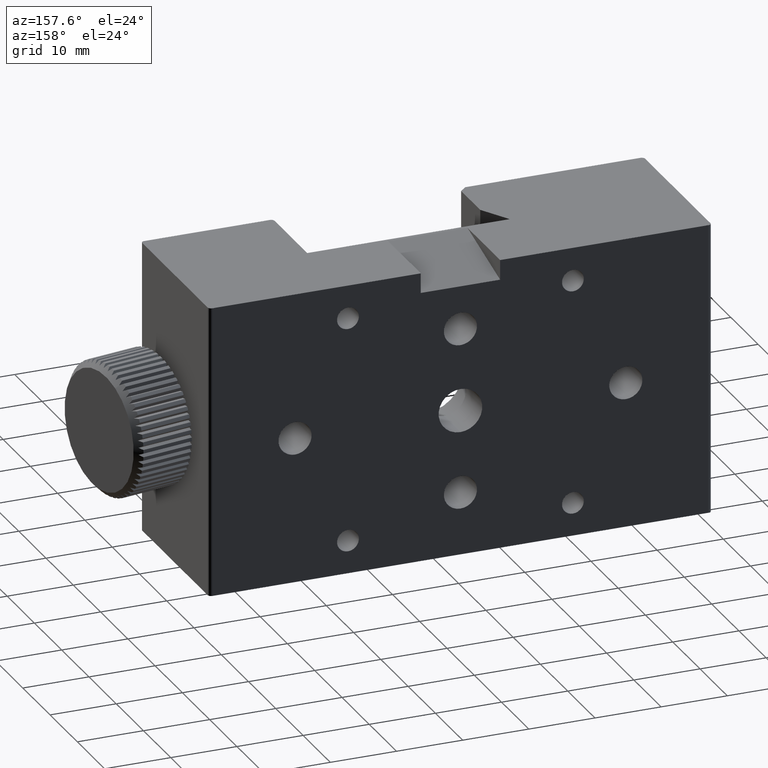
[diagram: clean part render]
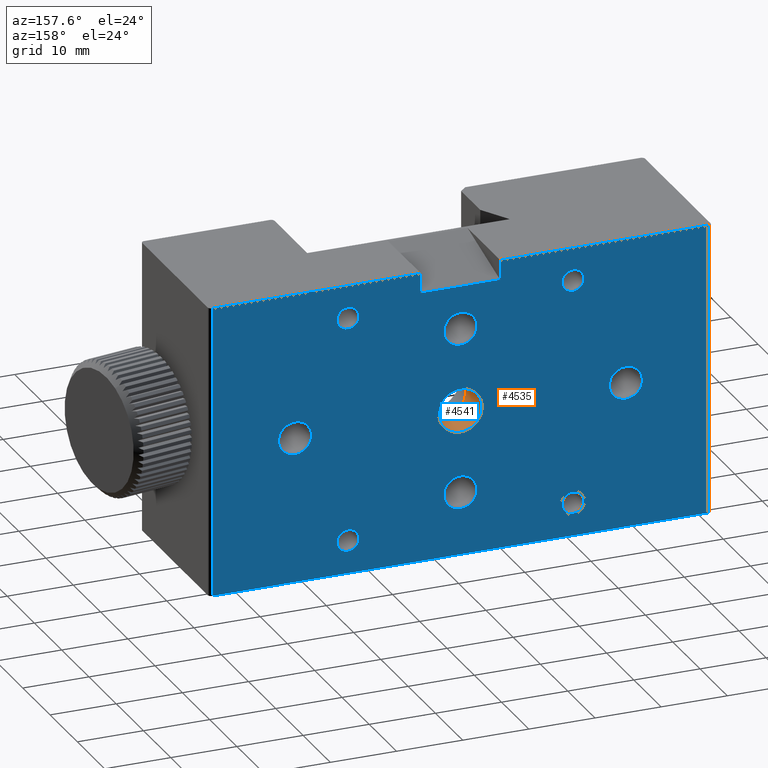
[diagram: same view with the hole feature highlighted: cylindrical wall and planar end face, labeled with their STEP entity ids]
A machine part, auxiliary view. The highlighted faces form one hole feature of diameter 6.6 mm: the cylindrical wall (entity #4535, orange) and its adjacent planar end face (entity #4541, blue) — they share a circular edge in the B-rep.
Wall:
#87 = FACE_OUTER_BOUND ( 'NONE', #577, .T. ) ;
#90 = FACE_OUTER_BOUND ( 'NONE', #548, .T. ) ;
#92 = CYLINDRICAL_SURFACE ( 'NONE', #7127, 3.300000000000004700 ) ;
#481 = CARTESIAN_POINT ( 'NONE',  ( -22.72326483554944300, 14.05794959574837000, 0.0000000000000000000 ) ) ;
#482 = DIRECTION ( 'NONE',  ( -0.0000000000000000000, -1.000000000000000000, -0.0000000000000000000 ) ) ;
#483 = DIRECTION ( 'NONE',  ( 0.0000000000000000000, 0.0000000000000000000, -1.000000000000000000 ) ) ;
#484 = CARTESIAN_POINT ( 'NONE',  ( -22.72326483554944300, 8.057949595748372200, 0.0000000000000000000 ) ) ;
#485 = DIRECTION ( 'NONE',  ( -0.0000000000000000000, -1.000000000000000000, -0.0000000000000000000 ) ) ;
#486 = DIRECTION ( 'NONE',  ( 0.0000000000000000000, 0.0000000000000000000, -1.000000000000000000 ) ) ;
#548 = EDGE_LOOP ( 'NONE', ( #1062 ) ) ;
#577 = EDGE_LOOP ( 'NONE', ( #1061 ) ) ;
#1061 = ORIENTED_EDGE ( 'NONE', *, *, #1379, .F. ) ;
#1062 = ORIENTED_EDGE ( 'NONE', *, *, #1380, .T. ) ;
#1379 = EDGE_CURVE ( 'NONE', #4290, #4290, #2554, .T. ) ;
#1380 = EDGE_CURVE ( 'NONE', #4291, #4291, #2557, .T. ) ;
#2554 = CIRCLE ( 'NONE', #3349, 3.299999999999996700 ) ;
#2557 = CIRCLE ( 'NONE', #3350, 3.300000000000013100 ) ;
#2606 = DIRECTION ( 'NONE',  ( -0.0000000000000000000, -1.000000000000000000, -0.0000000000000000000 ) ) ;
#2607 = DIRECTION ( 'NONE',  ( 0.0000000000000000000, 0.0000000000000000000, -1.000000000000000000 ) ) ;
#2610 = CARTESIAN_POINT ( 'NONE',  ( -22.72326483554944300, 1.557949595748372000, 0.0000000000000000000 ) ) ;
#3349 = AXIS2_PLACEMENT_3D ( 'NONE', #481, #482, #483 ) ;
#3350 = AXIS2_PLACEMENT_3D ( 'NONE', #484, #485, #486 ) ;
#4290 = VERTEX_POINT ( 'NONE', #5331 ) ;
#4291 = VERTEX_POINT ( 'NONE', #5337 ) ;
#4535 = ADVANCED_FACE ( 'NONE', ( #87, #90 ), #92, .F. ) ;
#5331 = CARTESIAN_POINT ( 'NONE',  ( -22.72326483554944300, 14.05794959574837000, -3.299999999999996700 ) ) ;
#5337 = CARTESIAN_POINT ( 'NONE',  ( -22.72326483554944300, 8.057949595748372200, -3.300000000000013100 ) ) ;
#7127 = AXIS2_PLACEMENT_3D ( 'NONE', #2610, #2606, #2607 ) ;
End face:
#102 = FACE_BOUND ( 'NONE', #6610, .T. ) ;
#103 = FACE_BOUND ( 'NONE', #6636, .T. ) ;
#104 = FACE_BOUND ( 'NONE', #6633, .T. ) ;
#106 = FACE_BOUND ( 'NONE', #6634, .T. ) ;
#108 = FACE_BOUND ( 'NONE', #6689, .T. ) ;
#109 = FACE_BOUND ( 'NONE', #6631, .T. ) ;
#110 = FACE_BOUND ( 'NONE', #6635, .T. ) ;
#111 = FACE_BOUND ( 'NONE', #6632, .T. ) ;
#112 = FACE_BOUND ( 'NONE', #6664, .T. ) ;
#113 = FACE_OUTER_BOUND ( 'NONE', #6662, .T. ) ;
#481 = CARTESIAN_POINT ( 'NONE',  ( -22.72326483554944300, 14.05794959574837000, 0.0000000000000000000 ) ) ;
#482 = DIRECTION ( 'NONE',  ( -0.0000000000000000000, -1.000000000000000000, -0.0000000000000000000 ) ) ;
#483 = DIRECTION ( 'NONE',  ( 0.0000000000000000000, 0.0000000000000000000, -1.000000000000000000 ) ) ;
#561 = CARTESIAN_POINT ( 'NONE',  ( -5.723264835549433500, 14.05794959574837000, -17.00000000000000700 ) ) ;
#562 = DIRECTION ( 'NONE',  ( -0.0000000000000000000, 1.000000000000000000, -0.0000000000000000000 ) ) ;
#563 = DIRECTION ( 'NONE',  ( 0.0000000000000000000, 0.0000000000000000000, 1.000000000000000000 ) ) ;
#1083 = ORIENTED_EDGE ( 'NONE', *, *, #1388, .F. ) ;
#1084 = ORIENTED_EDGE ( 'NONE', *, *, #1466, .F. ) ;
#1085 = ORIENTED_EDGE ( 'NONE', *, *, #6248, .F. ) ;
#1086 = ORIENTED_EDGE ( 'NONE', *, *, #1474, .F. ) ;
#1087 = ORIENTED_EDGE ( 'NONE', *, *, #6235, .F. ) ;
#1088 = ORIENTED_EDGE ( 'NONE', *, *, #1469, .F. ) ;
#1089 = ORIENTED_EDGE ( 'NONE', *, *, #1389, .F. ) ;
#1090 = ORIENTED_EDGE ( 'NONE', *, *, #1383, .F. ) ;
#1091 = ORIENTED_EDGE ( 'NONE', *, *, #1379, .T. ) ;
#1092 = ORIENTED_EDGE ( 'NONE', *, *, #3619, .F. ) ;
#1093 = ORIENTED_EDGE ( 'NONE', *, *, #3629, .T. ) ;
#1094 = ORIENTED_EDGE ( 'NONE', *, *, #1437, .F. ) ;
#1095 = ORIENTED_EDGE ( 'NONE', *, *, #1443, .F. ) ;
#1096 = ORIENTED_EDGE ( 'NONE', *, *, #3627, .T. ) ;
#1097 = ORIENTED_EDGE ( 'NONE', *, *, #3625, .T. ) ;
#1098 = ORIENTED_EDGE ( 'NONE', *, *, #1436, .F. ) ;
#1099 = ORIENTED_EDGE ( 'NONE', *, *, #3620, .F. ) ;
#1379 = EDGE_CURVE ( 'NONE', #4290, #4290, #2554, .T. ) ;
#1383 = EDGE_CURVE ( 'NONE', #4294, #4294, #2560, .T. ) ;
#1388 = EDGE_CURVE ( 'NONE', #4297, #4297, #1883, .T. ) ;
#1389 = EDGE_CURVE ( 'NONE', #4298, #4298, #1885, .T. ) ;
#1436 = EDGE_CURVE ( 'NONE', #5120, #5056, #1944, .T. ) ;
#1437 = EDGE_CURVE ( 'NONE', #5051, #5042, #1943, .T. ) ;
#1443 = EDGE_CURVE ( 'NONE', #5053, #5051, #1958, .T. ) ;
#1466 = EDGE_CURVE ( 'NONE', #4310, #4310, #1994, .T. ) ;
#1469 = EDGE_CURVE ( 'NONE', #4312, #4312, #1998, .T. ) ;
#1474 = EDGE_CURVE ( 'NONE', #4313, #4313, #2001, .T. ) ;
#1568 = CARTESIAN_POINT ( 'NONE',  ( 14.77673516445055700, 14.05794959574837000, 22.00000000000000000 ) ) ;
#1576 = CARTESIAN_POINT ( 'NONE',  ( 14.77673516445055700, 14.05794959574837000, 22.00000000000000000 ) ) ;
#1578 = DIRECTION ( 'NONE',  ( -1.000000000000000000, 0.0000000000000000000, 0.0000000000000000000 ) ) ;
#1579 = DIRECTION ( 'NONE',  ( -1.000000000000000000, 0.0000000000000000000, 0.0000000000000000000 ) ) ;
#1588 = CARTESIAN_POINT ( 'NONE',  ( 14.77673516445055700, 14.05794959574837000, -22.00000000000000000 ) ) ;
#1590 = DIRECTION ( 'NONE',  ( 0.0000000000000000000, 0.0000000000000000000, 1.000000000000000000 ) ) ;
#1883 = CIRCLE ( 'NONE', #3358, 1.649999999999988400 ) ;
#1885 = CIRCLE ( 'NONE', #3359, 2.499999999999990200 ) ;
#1943 = LINE ( 'NONE', #1568, #1949 ) ;
#1944 = LINE ( 'NONE', #1576, #1947 ) ;
#1947 = VECTOR ( 'NONE', #1578, 1000.000000000000000 ) ;
#1949 = VECTOR ( 'NONE', #1579, 1000.000000000000000 ) ;
#1958 = LINE ( 'NONE', #1588, #1960 ) ;
#1960 = VECTOR ( 'NONE', #1590, 1000.000000000000000 ) ;
#1994 = CIRCLE ( 'NONE', #3383, 1.649999999999988400 ) ;
#1998 = CIRCLE ( 'NONE', #3385, 2.499999999999988500 ) ;
#2001 = CIRCLE ( 'NONE', #3388, 1.649999999999991700 ) ;
#2134 = LINE ( 'NONE', #2855, #2141 ) ;
#2137 = LINE ( 'NONE', #2851, #2139 ) ;
#2139 = VECTOR ( 'NONE', #2846, 1000.000000000000000 ) ;
#2141 = VECTOR ( 'NONE', #2860, 1000.000000000000000 ) ;
#2148 = LINE ( 'NONE', #2868, #2151 ) ;
#2151 = VECTOR ( 'NONE', #2870, 1000.000000000000000 ) ;
#2152 = LINE ( 'NONE', #2869, #2154 ) ;
#2154 = VECTOR ( 'NONE', #2862, 1000.000000000000000 ) ;
#2155 = LINE ( 'NONE', #2878, #2158 ) ;
#2158 = VECTOR ( 'NONE', #2879, 1000.000000000000000 ) ;
#2554 = CIRCLE ( 'NONE', #3349, 3.299999999999996700 ) ;
#2560 = CIRCLE ( 'NONE', #3353, 2.499999999999990200 ) ;
#2628 = DIRECTION ( 'NONE',  ( 0.0000000000000000000, 1.000000000000000000, -0.0000000000000000000 ) ) ;
#2629 = PLANE ( 'NONE',  #7134 ) ;
#2631 = CARTESIAN_POINT ( 'NONE',  ( 14.77673516445055700, 14.05794959574837000, -22.00000000000000000 ) ) ;
#2633 = DIRECTION ( 'NONE',  ( 0.0000000000000000000, 0.0000000000000000000, 1.000000000000000000 ) ) ;
#2846 = DIRECTION ( 'NONE',  ( -1.000000000000000000, 0.0000000000000000000, 0.0000000000000000000 ) ) ;
#2851 = CARTESIAN_POINT ( 'NONE',  ( -23.89337804309660400, 14.05794959574837000, 19.00000000000000000 ) ) ;
#2855 = CARTESIAN_POINT ( 'NONE',  ( -28.72326483554944000, 14.05794959574837000, 19.00000000000000000 ) ) ;
#2860 = DIRECTION ( 'NONE',  ( -0.0000000000000000000, -0.0000000000000000000, 1.000000000000000000 ) ) ;
#2862 = DIRECTION ( 'NONE',  ( -1.000000000000000000, 0.0000000000000000000, 0.0000000000000000000 ) ) ;
#2868 = CARTESIAN_POINT ( 'NONE',  ( -60.22326483554944300, 14.05794959574837000, -22.00000000000000000 ) ) ;
#2869 = CARTESIAN_POINT ( 'NONE',  ( 14.77673516445055700, 14.05794959574837000, -22.00000000000000000 ) ) ;
#2870 = DIRECTION ( 'NONE',  ( 0.0000000000000000000, 0.0000000000000000000, 1.000000000000000000 ) ) ;
#2878 = CARTESIAN_POINT ( 'NONE',  ( -16.72326483554944300, 14.05794959574837000, 19.00000000000000000 ) ) ;
#2879 = DIRECTION ( 'NONE',  ( -0.0000000000000000000, -0.0000000000000000000, 1.000000000000000000 ) ) ;
#2943 = CARTESIAN_POINT ( 'NONE',  ( -28.72326483554944000, 14.05794959574837000, 19.00000000000000000 ) ) ;
#2946 = CARTESIAN_POINT ( 'NONE',  ( -16.72326483554944300, 14.05794959574837000, 19.00000000000000000 ) ) ;
#2949 = CARTESIAN_POINT ( 'NONE',  ( 14.77673516445055700, 14.05794959574837000, 22.00000000000000000 ) ) ;
#2951 = CARTESIAN_POINT ( 'NONE',  ( 14.77673516445055700, 14.05794959574837000, -22.00000000000000000 ) ) ;
#2953 = CARTESIAN_POINT ( 'NONE',  ( -60.22326483554944300, 14.05794959574837000, -22.00000000000000000 ) ) ;
#2954 = CARTESIAN_POINT ( 'NONE',  ( -60.22326483554944300, 14.05794959574837000, 22.00000000000000000 ) ) ;
#2968 = CARTESIAN_POINT ( 'NONE',  ( -28.72326483554944000, 14.05794959574837000, 22.00000000000000000 ) ) ;
#3349 = AXIS2_PLACEMENT_3D ( 'NONE', #481, #482, #483 ) ;
#3353 = AXIS2_PLACEMENT_3D ( 'NONE', #3793, #3794, #3795 ) ;
#3358 = AXIS2_PLACEMENT_3D ( 'NONE', #3808, #3809, #3810 ) ;
#3359 = AXIS2_PLACEMENT_3D ( 'NONE', #3811, #3812, #3813 ) ;
#3383 = AXIS2_PLACEMENT_3D ( 'NONE', #561, #562, #563 ) ;
#3385 = AXIS2_PLACEMENT_3D ( 'NONE', #4148, #4149, #4150 ) ;
#3388 = AXIS2_PLACEMENT_3D ( 'NONE', #4162, #4163, #4164 ) ;
#3619 = EDGE_CURVE ( 'NONE', #5048, #5045, #2137, .T. ) ;
#3620 = EDGE_CURVE ( 'NONE', #5045, #5120, #2134, .T. ) ;
#3625 = EDGE_CURVE ( 'NONE', #5055, #5056, #2148, .T. ) ;
#3627 = EDGE_CURVE ( 'NONE', #5053, #5055, #2152, .T. ) ;
#3629 = EDGE_CURVE ( 'NONE', #5048, #5042, #2155, .T. ) ;
#3793 = CARTESIAN_POINT ( 'NONE',  ( -22.72326483554944300, 14.05794959574837000, 12.50000000000000400 ) ) ;
#3794 = DIRECTION ( 'NONE',  ( -0.0000000000000000000, 1.000000000000000000, -0.0000000000000000000 ) ) ;
#3795 = DIRECTION ( 'NONE',  ( 0.0000000000000000000, 0.0000000000000000000, 1.000000000000000000 ) ) ;
#3808 = CARTESIAN_POINT ( 'NONE',  ( -5.723264835549433500, 14.05794959574837000, 16.99999999999999300 ) ) ;
#3809 = DIRECTION ( 'NONE',  ( -0.0000000000000000000, 1.000000000000000000, -0.0000000000000000000 ) ) ;
#3810 = DIRECTION ( 'NONE',  ( 0.0000000000000000000, 0.0000000000000000000, 1.000000000000000000 ) ) ;
#3811 = CARTESIAN_POINT ( 'NONE',  ( -22.72326483554944300, 14.05794959574837000, -12.49999999999999600 ) ) ;
#3812 = DIRECTION ( 'NONE',  ( -0.0000000000000000000, 1.000000000000000000, -0.0000000000000000000 ) ) ;
#3813 = DIRECTION ( 'NONE',  ( 0.0000000000000000000, 0.0000000000000000000, 1.000000000000000000 ) ) ;
#4148 = CARTESIAN_POINT ( 'NONE',  ( 2.276735164450559300, 14.05794959574837000, 0.0000000000000000000 ) ) ;
#4149 = DIRECTION ( 'NONE',  ( -0.0000000000000000000, 1.000000000000000000, -0.0000000000000000000 ) ) ;
#4150 = DIRECTION ( 'NONE',  ( 0.0000000000000000000, 0.0000000000000000000, 1.000000000000000000 ) ) ;
#4162 = CARTESIAN_POINT ( 'NONE',  ( -39.72326483554943600, 14.05794959574837000, 16.99999999999999300 ) ) ;
#4163 = DIRECTION ( 'NONE',  ( -0.0000000000000000000, 1.000000000000000000, -0.0000000000000000000 ) ) ;
#4164 = DIRECTION ( 'NONE',  ( 0.0000000000000000000, 0.0000000000000000000, 1.000000000000000000 ) ) ;
#4198 = CIRCLE ( 'NONE', #5149, 2.499999999999988500 ) ;
#4225 = CIRCLE ( 'NONE', #5153, 1.649999999999989900 ) ;
#4290 = VERTEX_POINT ( 'NONE', #5331 ) ;
#4294 = VERTEX_POINT ( 'NONE', #5340 ) ;
#4297 = VERTEX_POINT ( 'NONE', #5343 ) ;
#4298 = VERTEX_POINT ( 'NONE', #5344 ) ;
#4310 = VERTEX_POINT ( 'NONE', #5356 ) ;
#4312 = VERTEX_POINT ( 'NONE', #5358 ) ;
#4313 = VERTEX_POINT ( 'NONE', #5359 ) ;
#4316 = VERTEX_POINT ( 'NONE', #5362 ) ;
#4319 = VERTEX_POINT ( 'NONE', #5365 ) ;
#4541 = ADVANCED_FACE ( 'NONE', ( #103, #108, #102, #104, #106, #109, #110, #111, #112, #113 ), #2629, .T. ) ;
#5042 = VERTEX_POINT ( 'NONE', #6575 ) ;
#5045 = VERTEX_POINT ( 'NONE', #2943 ) ;
#5048 = VERTEX_POINT ( 'NONE', #2946 ) ;
#5051 = VERTEX_POINT ( 'NONE', #2949 ) ;
#5053 = VERTEX_POINT ( 'NONE', #2951 ) ;
#5055 = VERTEX_POINT ( 'NONE', #2953 ) ;
#5056 = VERTEX_POINT ( 'NONE', #2954 ) ;
#5120 = VERTEX_POINT ( 'NONE', #2968 ) ;
#5149 = AXIS2_PLACEMENT_3D ( 'NONE', #5495, #5496, #5497 ) ;
#5153 = AXIS2_PLACEMENT_3D ( 'NONE', #5524, #5525, #5526 ) ;
#5331 = CARTESIAN_POINT ( 'NONE',  ( -22.72326483554944300, 14.05794959574837000, -3.299999999999996700 ) ) ;
#5340 = CARTESIAN_POINT ( 'NONE',  ( -22.72326483554944300, 14.05794959574837000, 14.99999999999999500 ) ) ;
#5343 = CARTESIAN_POINT ( 'NONE',  ( -5.723264835549433500, 14.05794959574837000, 18.64999999999998100 ) ) ;
#5344 = CARTESIAN_POINT ( 'NONE',  ( -22.72326483554944300, 14.05794959574837000, -10.00000000000000700 ) ) ;
#5356 = CARTESIAN_POINT ( 'NONE',  ( -5.723264835549433500, 14.05794959574837000, -15.35000000000001900 ) ) ;
#5358 = CARTESIAN_POINT ( 'NONE',  ( 2.276735164450559300, 14.05794959574837000, 2.499999999999988500 ) ) ;
#5359 = CARTESIAN_POINT ( 'NONE',  ( -39.72326483554943600, 14.05794959574837000, 18.64999999999998400 ) ) ;
#5362 = CARTESIAN_POINT ( 'NONE',  ( -47.72326483554944300, 14.05794959574837000, 2.499999999999988500 ) ) ;
#5365 = CARTESIAN_POINT ( 'NONE',  ( -39.72326483554943600, 14.05794959574837000, -15.35000000000001700 ) ) ;
#5495 = CARTESIAN_POINT ( 'NONE',  ( -47.72326483554944300, 14.05794959574837000, 0.0000000000000000000 ) ) ;
#5496 = DIRECTION ( 'NONE',  ( -0.0000000000000000000, 1.000000000000000000, -0.0000000000000000000 ) ) ;
#5497 = DIRECTION ( 'NONE',  ( 0.0000000000000000000, 0.0000000000000000000, 1.000000000000000000 ) ) ;
#5524 = CARTESIAN_POINT ( 'NONE',  ( -39.72326483554943600, 14.05794959574837000, -17.00000000000000700 ) ) ;
#5525 = DIRECTION ( 'NONE',  ( -0.0000000000000000000, 1.000000000000000000, -0.0000000000000000000 ) ) ;
#5526 = DIRECTION ( 'NONE',  ( 0.0000000000000000000, 0.0000000000000000000, 1.000000000000000000 ) ) ;
#6235 = EDGE_CURVE ( 'NONE', #4316, #4316, #4198, .T. ) ;
#6248 = EDGE_CURVE ( 'NONE', #4319, #4319, #4225, .T. ) ;
#6575 = CARTESIAN_POINT ( 'NONE',  ( -16.72326483554944300, 14.05794959574837000, 22.00000000000000000 ) ) ;
#6610 = EDGE_LOOP ( 'NONE', ( #1085 ) ) ;
#6631 = EDGE_LOOP ( 'NONE', ( #1088 ) ) ;
#6632 = EDGE_LOOP ( 'NONE', ( #1090 ) ) ;
#6633 = EDGE_LOOP ( 'NONE', ( #1086 ) ) ;
#6634 = EDGE_LOOP ( 'NONE', ( #1087 ) ) ;
#6635 = EDGE_LOOP ( 'NONE', ( #1089 ) ) ;
#6636 = EDGE_LOOP ( 'NONE', ( #1083 ) ) ;
#6662 = EDGE_LOOP ( 'NONE', ( #1092, #1093, #1094, #1095, #1096, #1097, #1098, #1099 ) ) ;
#6664 = EDGE_LOOP ( 'NONE', ( #1091 ) ) ;
#6689 = EDGE_LOOP ( 'NONE', ( #1084 ) ) ;
#7134 = AXIS2_PLACEMENT_3D ( 'NONE', #2631, #2628, #2633 ) ;